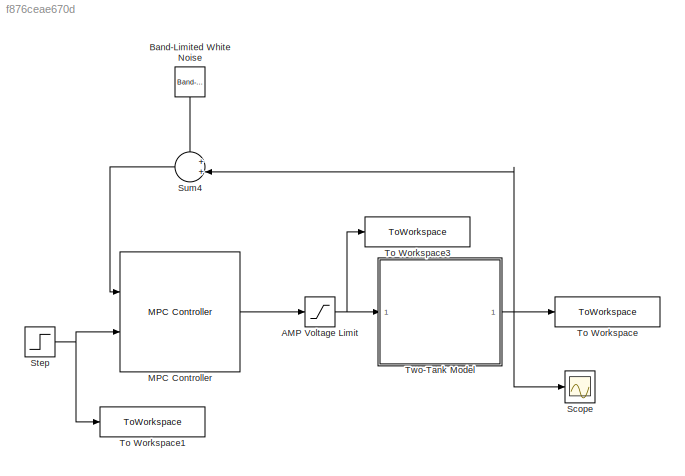
MODEL slx_f876ceae670d
KIND model
CONFIG AbsTol = auto
CONFIG EnableMultiTasking = on
CONFIG FixedStep = Ts
CONFIG MaxStep = auto
CONFIG MinStep = auto
CONFIG RelTol = 1e-3
CONFIG SampleTimeConstraint = Unconstrained
CONFIG Solver = ode4
CONFIG SolverName = ode4
CONFIG StartTime = 0.0
CONFIG StopTime = tiempo
BLOCK [Saturate] AMP Voltage Limit
  InputPortMap = u0
  LowerLimit = 0
  Ports = [1, 1]
  UpperLimit = VMAX_AMP
BLOCK [Reference] Band-Limited White Noise  REF=simulink/Sources/Band-Limited
White Noise
  Ports = [0, 1]
  SourceBlock = simulink/Sources/Band-Limited\nWhite Noise
  SourceType = Band-Limited White Noise.
BLOCK [Reference] MPC Controller  REF=mpclib/MPC Controller  (lib defined in mdl_ae329e0e0455)
  Ports = [2, 1]
  SCDEnableBlockLinearizationSpecification = on
  SourceBlock = mpclib/MPC Controller
  SourceType = MPC
BLOCK [Scope] Scope
  NumInputPorts = 1
  Ports = [1]
  ScopeSpecificationString = Simulink.scopes.TimeScopeBlockCfg('CurrentConfiguration', extmgr.ConfigurationSet(extmgr.Configuration('Core','General UI',true),extmgr.Configuration('Core','Source UI',true),extmgr.Configuration('Sources','WiredSimulink',true),extmgr.Configuration('Visuals','Time Domain',true,'SerializedDisplays',{struct('MinYLimReal','-2.51224','MaxYLimReal','22.61019','YLabelReal','','MinYLimMag','0.00000','Max...<+1370ch>
BLOCK [Step] Step
  After = step
  Before = 15
  SampleTime = 0
  Time = step_time
BLOCK [Sum] Sum4
  IconShape = round
  Inputs = ++|
  Ports = [2, 1]
BLOCK [ToWorkspace] To Workspace
  FixptAsFi = on
  MaxDataPoints = inf
  Ports = [1]
  SampleTime = -1
  Save2DSignal = 3-D array (concatenate along third dimension)
  SaveFormat = Timeseries
  VariableName = salida_controlada
BLOCK [ToWorkspace] To Workspace1
  FixptAsFi = on
  MaxDataPoints = inf
  Ports = [1]
  SampleTime = -1
  Save2DSignal = 3-D array (concatenate along third dimension)
  SaveFormat = Timeseries
  VariableName = referencia_controlada
BLOCK [ToWorkspace] To Workspace3
  FixptAsFi = on
  MaxDataPoints = inf
  Ports = [1]
  SampleTime = -1
  Save2DSignal = 3-D array (concatenate along third dimension)
  SaveFormat = Timeseries
  VariableName = Vp_controlada
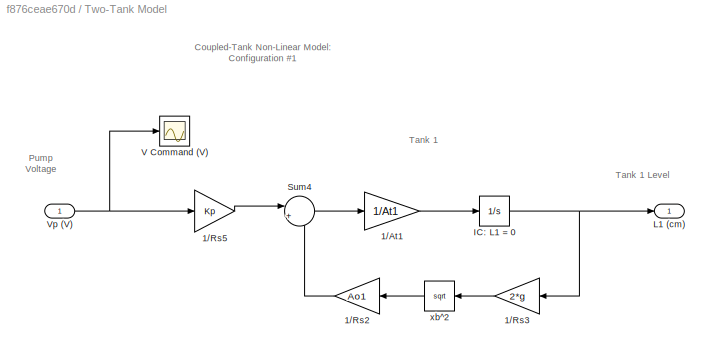
BLOCK [SubSystem] Two-Tank Model
  Ports = [1, 1]
  RequestExecContextInheritance = off
  Variant = off
BLOCK [Gain] Two-Tank Model/1//At1
  Gain = 1/At1
BLOCK [Gain] Two-Tank Model/1//Rs2
  Gain = Ao1
BLOCK [Gain] Two-Tank Model/1//Rs3
  Gain = 2*g
BLOCK [Gain] Two-Tank Model/1//Rs5
  Gain = Kp
BLOCK [Integrator] Two-Tank Model/IC: L1 = 0
  InitialCondition = ic
  Ports = [1, 1]
BLOCK [Outport] Two-Tank Model/L1 (cm)
  IconDisplay = Port number
  InitialOutput = 0
BLOCK [Sum] Two-Tank Model/Sum4
  IconShape = round
  Inputs = |+-
  Ports = [2, 1]
BLOCK [Scope] Two-Tank Model/V Command (V)
  NumInputPorts = 1
  Ports = [1]
  ScopeSpecificationString = C++SS(StrPVP('Location','[90, 597, 641, 902]'),StrPVP('Open','off'),StrPVP('TickLabels','on'),MxPVP('AxesTitles',24,'struct(''axes1'',''%<SignalLabel>'')'),StrPVP('TimeRange','1.000000'),StrPVP('YMin','-1'),StrPVP('YMax','1'),StrPVP('SaveName','ScopeData2'),StrPVP('DataFormat','Array'),StrPVP('BlockParamSampleTime','0'),StrPVP('LimitDataPoints','on'),StrPVP('Decimation','1'),StrPVP('BlockParamSamp...<+16ch>
BLOCK [Inport] Two-Tank Model/Vp (V)
  IconDisplay = Port number
BLOCK [Math] Two-Tank Model/xb^2
  Operator = sqrt
  Ports = [1, 1]
ANNOTATION Two-Tank Model: Coupled-Tank Non-Linear Model: Configuration #1
ANNOTATION Two-Tank Model: Pump Voltage
ANNOTATION Two-Tank Model: Tank 1
ANNOTATION Two-Tank Model: Tank 1 Level
NET AMP Voltage Limit:1 -> To Workspace3:1, Two-Tank Model:1
LINE Band-Limited White Noise:1 -> Sum4:1
LINE MPC Controller:1 -> AMP Voltage Limit:1
NET Step:1 -> MPC Controller:2, To Workspace1:1
LINE Sum4:1 -> MPC Controller:1
LINE Two-Tank Model/1//At1:1 -> Two-Tank Model/IC: L1 = 0:1
LINE Two-Tank Model/1//Rs2:1 -> Two-Tank Model/Sum4:2
LINE Two-Tank Model/1//Rs3:1 -> Two-Tank Model/xb^2:1
LINE Two-Tank Model/1//Rs5:1 -> Two-Tank Model/Sum4:1
NET Two-Tank Model/IC: L1 = 0:1 -> Two-Tank Model/1//Rs3:1, Two-Tank Model/L1 (cm):1
LINE Two-Tank Model/Sum4:1 -> Two-Tank Model/1//At1:1
NET Two-Tank Model/Vp (V):1 -> Two-Tank Model/1//Rs5:1, Two-Tank Model/V Command (V):1
LINE Two-Tank Model/xb^2:1 -> Two-Tank Model/1//Rs2:1
NET Two-Tank Model:1 -> Scope:1, Sum4:2, To Workspace:1
note: NET lines group one-source signal fan-out (src -> all destinations, sorted); 1:1 wires keep LINE
